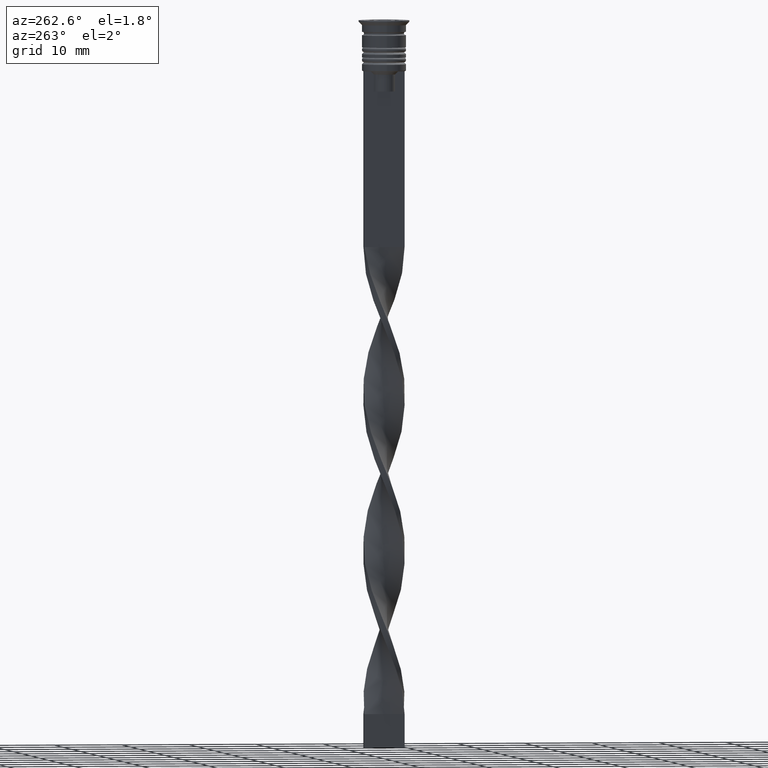
[diagram: clean part render]
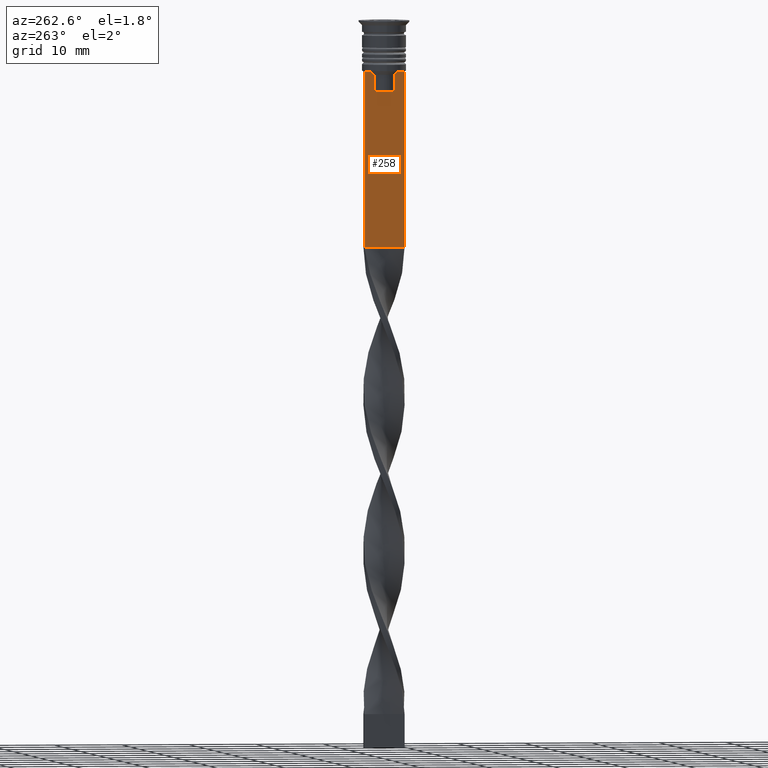
[diagram: same view with one face highlighted and labeled with its STEP entity id]
A machine part, auxiliary view. The second image highlights one B-rep face of the part: STEP entity #258.
In plain terms, the highlighted planar face has unit normal (-1, 0, 0).
Its self-contained STEP definition (entity closure, byte-faithful):
#2 = LINE ( 'NONE', #3042, #3109 ) ;
#7 = LINE ( 'NONE', #532, #141 ) ;
#22 = ORIENTED_EDGE ( 'NONE', *, *, #1619, .F. ) ;
#58 = DIRECTION ( 'NONE',  ( 0.000000000000000000, 1.000000000000000000, 0.000000000000000000 ) ) ;
#116 = EDGE_LOOP ( 'NONE', ( #22, #3294, #2201, #657, #160, #2302, #257, #201, #1184, #436 ) ) ;
#141 = VECTOR ( 'NONE', #1564, 1000.000000000000000 ) ;
#160 = ORIENTED_EDGE ( 'NONE', *, *, #2321, .F. ) ;
#177 = EDGE_CURVE ( 'NONE', #2746, #239, #1673, .T. ) ;
#201 = ORIENTED_EDGE ( 'NONE', *, *, #2955, .F. ) ;
#239 = VERTEX_POINT ( 'NONE', #3068 ) ;
#257 = ORIENTED_EDGE ( 'NONE', *, *, #1020, .F. ) ;
#258 = ADVANCED_FACE ( 'NONE', ( #3337 ), #454, .T. ) ;
#284 = VECTOR ( 'NONE', #2720, 1000.000000000000000 ) ;
#326 = LINE ( 'NONE', #2403, #673 ) ;
#436 = ORIENTED_EDGE ( 'NONE', *, *, #2295, .F. ) ;
#445 = CARTESIAN_POINT ( 'NONE',  ( -0.5000000000000001110, -1.746240429054158660, -7.834351036433149673 ) ) ;
#454 = PLANE ( 'NONE',  #879 ) ;
#462 = DIRECTION ( 'NONE',  ( 0.000000000000000000, -1.000000000000000000, 0.000000000000000000 ) ) ;
#532 = CARTESIAN_POINT ( 'NONE',  ( -0.5000000000000001110, -1.572418519351642230, 0.000000000000000000 ) ) ;
#533 = VERTEX_POINT ( 'NONE', #824 ) ;
#657 = ORIENTED_EDGE ( 'NONE', *, *, #2009, .F. ) ;
#673 = VECTOR ( 'NONE', #2187, 1000.000000000000000 ) ;
#701 = CARTESIAN_POINT ( 'NONE',  ( -0.5000000000000001110, -3.000000000000000000, -7.500000000000000000 ) ) ;
#730 = CARTESIAN_POINT ( 'NONE',  ( -0.5000000000000001110, -2.091052366632653481, -7.500000000000000000 ) ) ;
#784 = VERTEX_POINT ( 'NONE', #701 ) ;
#789 = VERTEX_POINT ( 'NONE', #2533 ) ;
#824 = CARTESIAN_POINT ( 'NONE',  ( -0.5000000000000001110, 2.091052366632653481, -7.500000000000000000 ) ) ;
#861 = VERTEX_POINT ( 'NONE', #1850 ) ;
#879 = AXIS2_PLACEMENT_3D ( 'NONE', #1752, #1205, #2044 ) ;
#972 = CARTESIAN_POINT ( 'NONE',  ( -0.5000000000000001110, 3.000000000000000000, -7.500000000000000000 ) ) ;
#1020 = EDGE_CURVE ( 'NONE', #1890, #789, #2017, .T. ) ;
#1035 = CARTESIAN_POINT ( 'NONE',  ( -0.5000000000000001110, 1.918907889994530658, -7.667424704779945976 ) ) ;
#1107 = CARTESIAN_POINT ( 'NONE',  ( -0.5000000000000001110, -3.000000000000000000, -33.50000000000000000 ) ) ;
#1184 = ORIENTED_EDGE ( 'NONE', *, *, #2981, .F. ) ;
#1205 = DIRECTION ( 'NONE',  ( -1.000000000000000000, 0.000000000000000000, 0.000000000000000000 ) ) ;
#1222 = VECTOR ( 'NONE', #2359, 1000.000000000000000 ) ;
#1230 = CARTESIAN_POINT ( 'NONE',  ( -0.5000000000000001110, -1.918909712772151721, -7.667422931978337353 ) ) ;
#1240 = CARTESIAN_POINT ( 'NONE',  ( -0.5000000000000001110, -1.572418519351642230, -10.49999999999999822 ) ) ;
#1246 = CARTESIAN_POINT ( 'NONE',  ( -0.5000000000000001110, 2.091052366632653481, -7.500000000000000000 ) ) ;
#1465 = LINE ( 'NONE', #2978, #2529 ) ;
#1542 = LINE ( 'NONE', #2579, #1222 ) ;
#1564 = DIRECTION ( 'NONE',  ( -0.000000000000000000, -0.000000000000000000, 1.000000000000000000 ) ) ;
#1619 = EDGE_CURVE ( 'NONE', #533, #1852, #2656, .T. ) ;
#1673 = LINE ( 'NONE', #2234, #284 ) ;
#1713 = VECTOR ( 'NONE', #58, 1000.000000000000000 ) ;
#1752 = CARTESIAN_POINT ( 'NONE',  ( -0.5000000000000001110, -3.000000000000000000, -1.417237469701779329 ) ) ;
#1843 = EDGE_CURVE ( 'NONE', #789, #784, #2, .T. ) ;
#1850 = CARTESIAN_POINT ( 'NONE',  ( -0.5000000000000001110, 1.572418519351642230, -10.49999999999999822 ) ) ;
#1852 = VERTEX_POINT ( 'NONE', #2821 ) ;
#1890 = VERTEX_POINT ( 'NONE', #3328 ) ;
#2008 = CARTESIAN_POINT ( 'NONE',  ( -0.5000000000000001110, -3.000000000000000000, -33.50000000000000000 ) ) ;
#2009 = EDGE_CURVE ( 'NONE', #2770, #239, #2941, .T. ) ;
#2017 = B_SPLINE_CURVE_WITH_KNOTS ( 'NONE', 3,
 ( #2556, #445, #1230, #730 ),
 .UNSPECIFIED., .F., .F.,
 ( 4, 4 ),
 ( 0.008356915209744724543, 0.009073319521387648162 ),
 .UNSPECIFIED. ) ;
#2044 = DIRECTION ( 'NONE',  ( 0.000000000000000000, 0.000000000000000000, 1.000000000000000000 ) ) ;
#2111 = EDGE_CURVE ( 'NONE', #2746, #533, #326, .T. ) ;
#2150 = VECTOR ( 'NONE', #2332, 1000.000000000000000 ) ;
#2187 = DIRECTION ( 'NONE',  ( 0.000000000000000000, -1.000000000000000000, 0.000000000000000000 ) ) ;
#2201 = ORIENTED_EDGE ( 'NONE', *, *, #177, .T. ) ;
#2234 = CARTESIAN_POINT ( 'NONE',  ( -0.5000000000000001110, 3.000000000000000000, -1.417237469701779329 ) ) ;
#2270 = CARTESIAN_POINT ( 'NONE',  ( -0.5000000000000001110, -3.000000000000000000, -1.417237469701779329 ) ) ;
#2295 = EDGE_CURVE ( 'NONE', #1852, #861, #1465, .T. ) ;
#2302 = ORIENTED_EDGE ( 'NONE', *, *, #1843, .F. ) ;
#2321 = EDGE_CURVE ( 'NONE', #784, #2770, #2788, .T. ) ;
#2332 = DIRECTION ( 'NONE',  ( 0.000000000000000000, 0.000000000000000000, -1.000000000000000000 ) ) ;
#2359 = DIRECTION ( 'NONE',  ( 0.000000000000000000, -1.000000000000000000, 0.000000000000000000 ) ) ;
#2403 = CARTESIAN_POINT ( 'NONE',  ( -0.5000000000000001110, -3.000000000000000000, -7.500000000000000000 ) ) ;
#2459 = VERTEX_POINT ( 'NONE', #1240 ) ;
#2474 = DIRECTION ( 'NONE',  ( 0.000000000000000000, 0.000000000000000000, -1.000000000000000000 ) ) ;
#2529 = VECTOR ( 'NONE', #2474, 1000.000000000000000 ) ;
#2533 = CARTESIAN_POINT ( 'NONE',  ( -0.5000000000000001110, -2.091052366632653481, -7.500000000000000000 ) ) ;
#2556 = CARTESIAN_POINT ( 'NONE',  ( -0.5000000000000001110, -1.572418519351642230, -8.000000000000000000 ) ) ;
#2579 = CARTESIAN_POINT ( 'NONE',  ( -0.5000000000000001110, 1.650000000000003464, -10.49999999999999822 ) ) ;
#2656 = B_SPLINE_CURVE_WITH_KNOTS ( 'NONE', 3,
 ( #1246, #1035, #3063, #3128 ),
 .UNSPECIFIED., .F., .F.,
 ( 4, 4 ),
 ( 0.003696428037903516997, 0.004416830248125220952 ),
 .UNSPECIFIED. ) ;
#2720 = DIRECTION ( 'NONE',  ( 0.000000000000000000, 0.000000000000000000, -1.000000000000000000 ) ) ;
#2746 = VERTEX_POINT ( 'NONE', #972 ) ;
#2770 = VERTEX_POINT ( 'NONE', #2008 ) ;
#2788 = LINE ( 'NONE', #2270, #2150 ) ;
#2821 = CARTESIAN_POINT ( 'NONE',  ( -0.5000000000000001110, 1.572418519351642230, -8.000000000000000000 ) ) ;
#2941 = LINE ( 'NONE', #1107, #1713 ) ;
#2955 = EDGE_CURVE ( 'NONE', #2459, #1890, #7, .T. ) ;
#2978 = CARTESIAN_POINT ( 'NONE',  ( -0.5000000000000001110, 1.572418519351642230, 0.000000000000000000 ) ) ;
#2981 = EDGE_CURVE ( 'NONE', #861, #2459, #1542, .T. ) ;
#3042 = CARTESIAN_POINT ( 'NONE',  ( -0.5000000000000001110, -3.000000000000000000, -7.500000000000000000 ) ) ;
#3063 = CARTESIAN_POINT ( 'NONE',  ( -0.5000000000000001110, 1.746261636039132092, -7.834330826581080487 ) ) ;
#3068 = CARTESIAN_POINT ( 'NONE',  ( -0.5000000000000001110, 3.000000000000000000, -33.50000000000000000 ) ) ;
#3109 = VECTOR ( 'NONE', #462, 1000.000000000000000 ) ;
#3128 = CARTESIAN_POINT ( 'NONE',  ( -0.5000000000000001110, 1.572418519351642230, -8.000000000000000000 ) ) ;
#3294 = ORIENTED_EDGE ( 'NONE', *, *, #2111, .F. ) ;
#3328 = CARTESIAN_POINT ( 'NONE',  ( -0.5000000000000001110, -1.572418519351642230, -8.000000000000000000 ) ) ;
#3337 = FACE_OUTER_BOUND ( 'NONE', #116, .T. ) ;